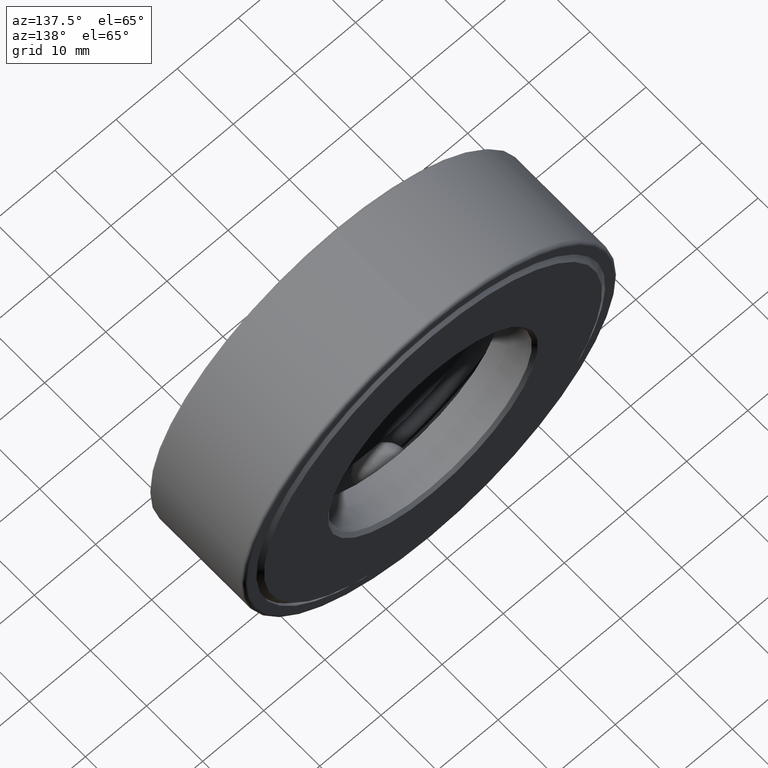
[diagram: clean part render]
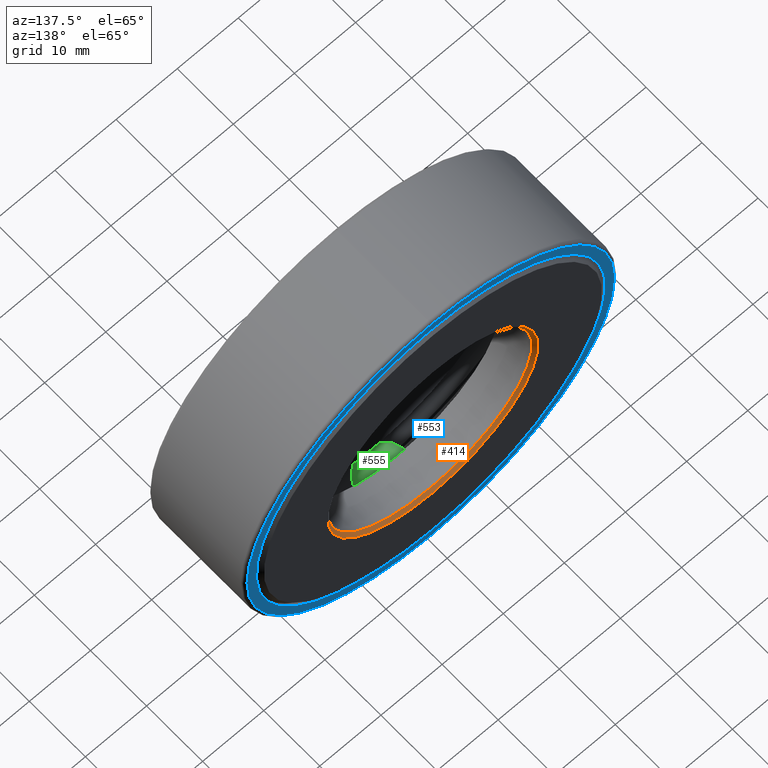
[diagram: same view with three faces highlighted in distinct colors, each labeled with its STEP entity id]
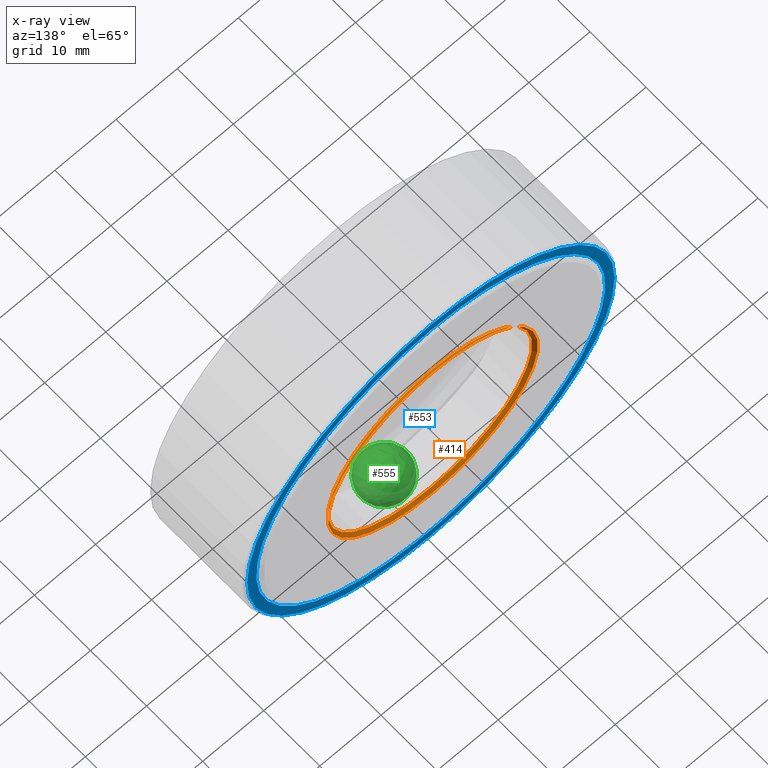
[diagram: x-ray of the same camera — body ghosted, the three highlighted faces saturated]
A machine part, auxiliary view with three faces highlighted in distinct colors.
The next image is the same camera in x-ray (body ghosted, the three faces saturated) — at least one of them is partly hidden behind the body in this view.
Their STEP definitions:

[orange] entity #414 — the highlighted conical surface has half-angle 45 deg.
#20 = CARTESIAN_POINT ( 'NONE',  ( 0.0000000000000000000, 0.6674999999999993200, 0.0000000000000000000 ) ) ;
#66 = DIRECTION ( 'NONE',  ( -0.0000000000000000000, 1.000000000000000000, -0.0000000000000000000 ) ) ;
#136 = FACE_BOUND ( 'NONE', #548, .T. ) ;
#145 = AXIS2_PLACEMENT_3D ( 'NONE', #287, #429, #344 ) ;
#146 = VERTEX_POINT ( 'NONE', #480 ) ;
#158 = CARTESIAN_POINT ( 'NONE',  ( 0.0000000000000000000, 0.6875000000000000000, 0.0000000000000000000 ) ) ;
#170 = VERTEX_POINT ( 'NONE', #348 ) ;
#171 = CONICAL_SURFACE ( 'NONE', #276, 0.6562500000000001100, 0.7853981633974380600 ) ;
#276 = AXIS2_PLACEMENT_3D ( 'NONE', #20, #66, #575 ) ;
#277 = EDGE_CURVE ( 'NONE', #146, #146, #605, .T. ) ;
#287 = CARTESIAN_POINT ( 'NONE',  ( 0.0000000000000000000, 0.6674999999999993200, 0.0000000000000000000 ) ) ;
#333 = ORIENTED_EDGE ( 'NONE', *, *, #277, .F. ) ;
#338 = DIRECTION ( 'NONE',  ( -0.0000000000000000000, 1.000000000000000000, -0.0000000000000000000 ) ) ;
#343 = FACE_OUTER_BOUND ( 'NONE', #456, .T. ) ;
#344 = DIRECTION ( 'NONE',  ( 0.0000000000000000000, 0.0000000000000000000, 1.000000000000000000 ) ) ;
#348 = CARTESIAN_POINT ( 'NONE',  ( 0.0000000000000000000, 0.6875000000000000000, 0.6762500000000003500 ) ) ;
#406 = CIRCLE ( 'NONE', #584, 0.6762500000000003500 ) ;
#414 = ADVANCED_FACE ( 'NONE', ( #343, #136 ), #171, .F. ) ;
#429 = DIRECTION ( 'NONE',  ( -0.0000000000000000000, 1.000000000000000000, -0.0000000000000000000 ) ) ;
#456 = EDGE_LOOP ( 'NONE', ( #508 ) ) ;
#480 = CARTESIAN_POINT ( 'NONE',  ( 0.0000000000000000000, 0.6674999999999993200, 0.6562500000000001100 ) ) ;
#485 = DIRECTION ( 'NONE',  ( 0.0000000000000000000, 0.0000000000000000000, 1.000000000000000000 ) ) ;
#508 = ORIENTED_EDGE ( 'NONE', *, *, #606, .T. ) ;
#548 = EDGE_LOOP ( 'NONE', ( #333 ) ) ;
#575 = DIRECTION ( 'NONE',  ( 0.0000000000000000000, 0.0000000000000000000, 1.000000000000000000 ) ) ;
#584 = AXIS2_PLACEMENT_3D ( 'NONE', #158, #338, #485 ) ;
#605 = CIRCLE ( 'NONE', #145, 0.6562500000000001100 ) ;
#606 = EDGE_CURVE ( 'NONE', #170, #170, #406, .T. ) ;

[blue] entity #553 — the highlighted planar face has unit normal (0, -1, 0).
#27 = CARTESIAN_POINT ( 'NONE',  ( 0.0000000000000000000, 0.6724999999999998800, 1.183125000000000000 ) ) ;
#29 = CARTESIAN_POINT ( 'NONE',  ( 0.0000000000000000000, 0.6724999999999998800, 0.0000000000000000000 ) ) ;
#32 = PLANE ( 'NONE',  #445 ) ;
#52 = FACE_OUTER_BOUND ( 'NONE', #559, .T. ) ;
#95 = AXIS2_PLACEMENT_3D ( 'NONE', #29, #255, #486 ) ;
#123 = DIRECTION ( 'NONE',  ( 0.0000000000000000000, -0.0000000000000000000, -1.000000000000000000 ) ) ;
#187 = EDGE_LOOP ( 'NONE', ( #483 ) ) ;
#198 = VERTEX_POINT ( 'NONE', #532 ) ;
#255 = DIRECTION ( 'NONE',  ( -0.0000000000000000000, 1.000000000000000000, -0.0000000000000000000 ) ) ;
#260 = CIRCLE ( 'NONE', #95, 1.183125000000000000 ) ;
#336 = ORIENTED_EDGE ( 'NONE', *, *, #421, .T. ) ;
#417 = CIRCLE ( 'NONE', #564, 1.123125000000000200 ) ;
#421 = EDGE_CURVE ( 'NONE', #515, #515, #260, .T. ) ;
#440 = CARTESIAN_POINT ( 'NONE',  ( 0.0000000000000000000, 0.6724999999999998800, 0.0000000000000000000 ) ) ;
#441 = DIRECTION ( 'NONE',  ( 0.0000000000000000000, -1.000000000000000000, 0.0000000000000000000 ) ) ;
#443 = CARTESIAN_POINT ( 'NONE',  ( 0.0000000000000000000, 0.6724999999999998800, 0.0000000000000000000 ) ) ;
#445 = AXIS2_PLACEMENT_3D ( 'NONE', #443, #441, #123 ) ;
#446 = EDGE_CURVE ( 'NONE', #198, #198, #417, .T. ) ;
#483 = ORIENTED_EDGE ( 'NONE', *, *, #446, .F. ) ;
#486 = DIRECTION ( 'NONE',  ( 0.0000000000000000000, 0.0000000000000000000, 1.000000000000000000 ) ) ;
#492 = DIRECTION ( 'NONE',  ( 0.0000000000000000000, 0.0000000000000000000, 1.000000000000000000 ) ) ;
#515 = VERTEX_POINT ( 'NONE', #27 ) ;
#532 = CARTESIAN_POINT ( 'NONE',  ( 0.0000000000000000000, 0.6724999999999998800, 1.123125000000000200 ) ) ;
#553 = ADVANCED_FACE ( 'NONE', ( #594, #52 ), #32, .F. ) ;
#559 = EDGE_LOOP ( 'NONE', ( #336 ) ) ;
#564 = AXIS2_PLACEMENT_3D ( 'NONE', #440, #583, #492 ) ;
#583 = DIRECTION ( 'NONE',  ( -0.0000000000000000000, 1.000000000000000000, -0.0000000000000000000 ) ) ;
#594 = FACE_BOUND ( 'NONE', #187, .T. ) ;

[green] entity #555 — the highlighted spherical surface has radius 3.9688 mm.
#106 = AXIS2_PLACEMENT_3D ( 'NONE', #350, #493, #308 ) ;
#165 = SPHERICAL_SURFACE ( 'NONE', #106, 0.1562500000000000000 ) ;
#308 = DIRECTION ( 'NONE',  ( 1.047444401652939400E-014, 0.0000000000000000000, 1.000000000000000000 ) ) ;
#350 = CARTESIAN_POINT ( 'NONE',  ( -1.066167470332486300E-014, 0.3437500000000000000, -1.017874999999999900 ) ) ;
#493 = DIRECTION ( 'NONE',  ( 1.000000000000000000, 0.0000000000000000000, -1.047444401652939400E-014 ) ) ;
#555 = ADVANCED_FACE ( 'NONE', ( ), #165, .T. ) ;